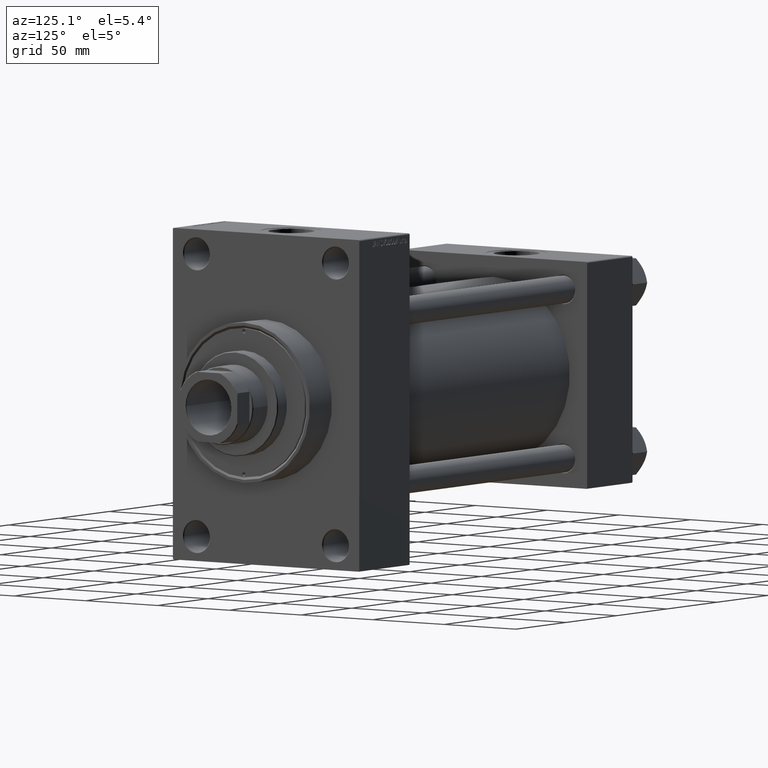
[diagram: clean part render]
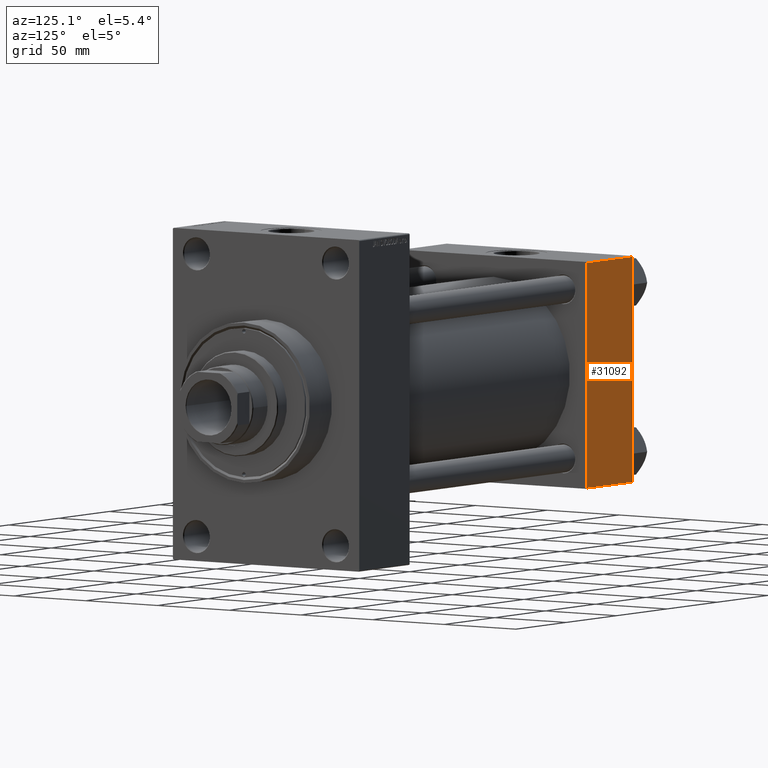
[diagram: same view with one face highlighted and labeled with its STEP entity id]
A machine part, auxiliary view. The second image highlights one B-rep face of the part: STEP entity #31092.
In plain terms, the highlighted planar face has unit normal (0, 1, 0).
Its self-contained STEP definition (entity closure, byte-faithful):
#1507 = CARTESIAN_POINT ( 'NONE',  ( 45.00000000000000000, 65.00000000000000000, 65.00000000000001421 ) ) ;
#2230 = EDGE_CURVE ( 'NONE', #20773, #16765, #9519, .T. ) ;
#2500 = EDGE_CURVE ( 'NONE', #37548, #20773, #20746, .T. ) ;
#2540 = DIRECTION ( 'NONE',  ( 0.000000000000000000, 0.000000000000000000, -1.000000000000000000 ) ) ;
#4381 = CARTESIAN_POINT ( 'NONE',  ( 0.000000000000000000, 65.00000000000000000, 65.00000000000001421 ) ) ;
#5375 = DIRECTION ( 'NONE',  ( 0.000000000000000000, -0.000000000000000000, 1.000000000000000000 ) ) ;
#9519 = LINE ( 'NONE', #35687, #37352 ) ;
#9977 = PLANE ( 'NONE',  #30429 ) ;
#10237 = DIRECTION ( 'NONE',  ( -1.000000000000000000, 0.000000000000000000, 0.000000000000000000 ) ) ;
#10965 = LINE ( 'NONE', #21423, #21864 ) ;
#13868 = ORIENTED_EDGE ( 'NONE', *, *, #21814, .F. ) ;
#16646 = ORIENTED_EDGE ( 'NONE', *, *, #29071, .T. ) ;
#16765 = VERTEX_POINT ( 'NONE', #18053 ) ;
#18053 = CARTESIAN_POINT ( 'NONE',  ( 0.000000000000000000, 65.00000000000000000, -64.49999999999995737 ) ) ;
#20746 = LINE ( 'NONE', #46144, #35038 ) ;
#20773 = VERTEX_POINT ( 'NONE', #32217 ) ;
#21423 = CARTESIAN_POINT ( 'NONE',  ( 45.00000000000000000, 65.00000000000000000, 64.49999999999998579 ) ) ;
#21814 = EDGE_CURVE ( 'NONE', #36241, #16765, #37574, .T. ) ;
#21864 = VECTOR ( 'NONE', #29627, 1000.000000000000000 ) ;
#26155 = CARTESIAN_POINT ( 'NONE',  ( 0.000000000000000000, 65.00000000000000000, 64.49999999999998579 ) ) ;
#29071 = EDGE_CURVE ( 'NONE', #36241, #37548, #10965, .T. ) ;
#29627 = DIRECTION ( 'NONE',  ( 1.000000000000000000, 0.000000000000000000, 0.000000000000000000 ) ) ;
#30429 = AXIS2_PLACEMENT_3D ( 'NONE', #1507, #31070, #5375 ) ;
#31070 = DIRECTION ( 'NONE',  ( -0.000000000000000000, 1.000000000000000000, 0.000000000000000000 ) ) ;
#31092 = ADVANCED_FACE ( 'NONE', ( #34935 ), #9977, .T. ) ;
#31698 = EDGE_LOOP ( 'NONE', ( #44825, #35298, #13868, #16646 ) ) ;
#32217 = CARTESIAN_POINT ( 'NONE',  ( 45.00000000000000000, 65.00000000000000000, -64.49999999999995737 ) ) ;
#33234 = VECTOR ( 'NONE', #33463, 1000.000000000000000 ) ;
#33368 = CARTESIAN_POINT ( 'NONE',  ( 45.00000000000000000, 65.00000000000000000, 64.49999999999998579 ) ) ;
#33463 = DIRECTION ( 'NONE',  ( 0.000000000000000000, 0.000000000000000000, -1.000000000000000000 ) ) ;
#34935 = FACE_OUTER_BOUND ( 'NONE', #31698, .T. ) ;
#35038 = VECTOR ( 'NONE', #2540, 1000.000000000000000 ) ;
#35298 = ORIENTED_EDGE ( 'NONE', *, *, #2230, .T. ) ;
#35687 = CARTESIAN_POINT ( 'NONE',  ( 45.00000000000000000, 65.00000000000000000, -64.49999999999995737 ) ) ;
#36241 = VERTEX_POINT ( 'NONE', #26155 ) ;
#37352 = VECTOR ( 'NONE', #10237, 1000.000000000000000 ) ;
#37548 = VERTEX_POINT ( 'NONE', #33368 ) ;
#37574 = LINE ( 'NONE', #4381, #33234 ) ;
#44825 = ORIENTED_EDGE ( 'NONE', *, *, #2500, .T. ) ;
#46144 = CARTESIAN_POINT ( 'NONE',  ( 45.00000000000000000, 65.00000000000000000, 65.00000000000001421 ) ) ;